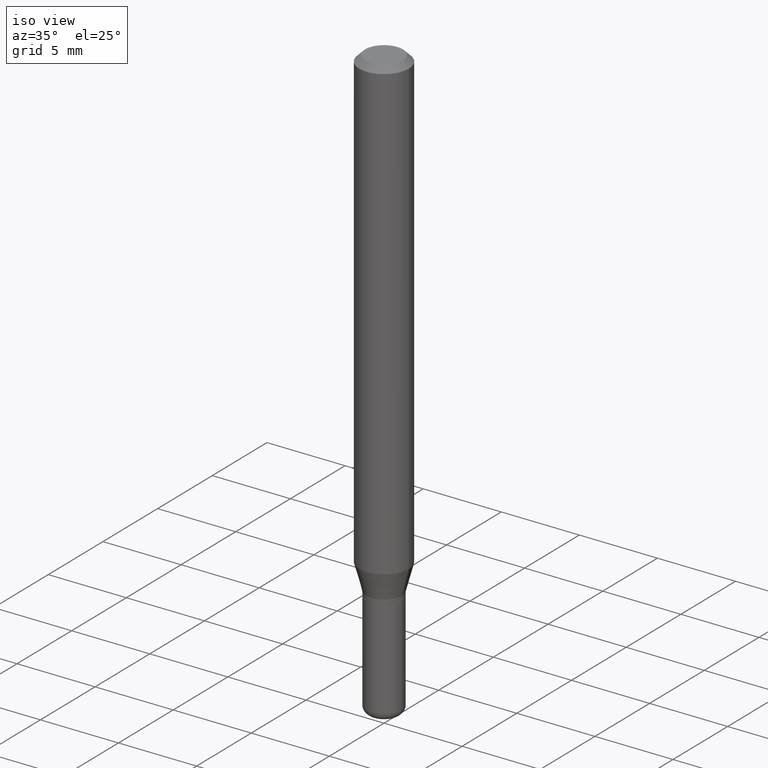
[diagram: clean part render]
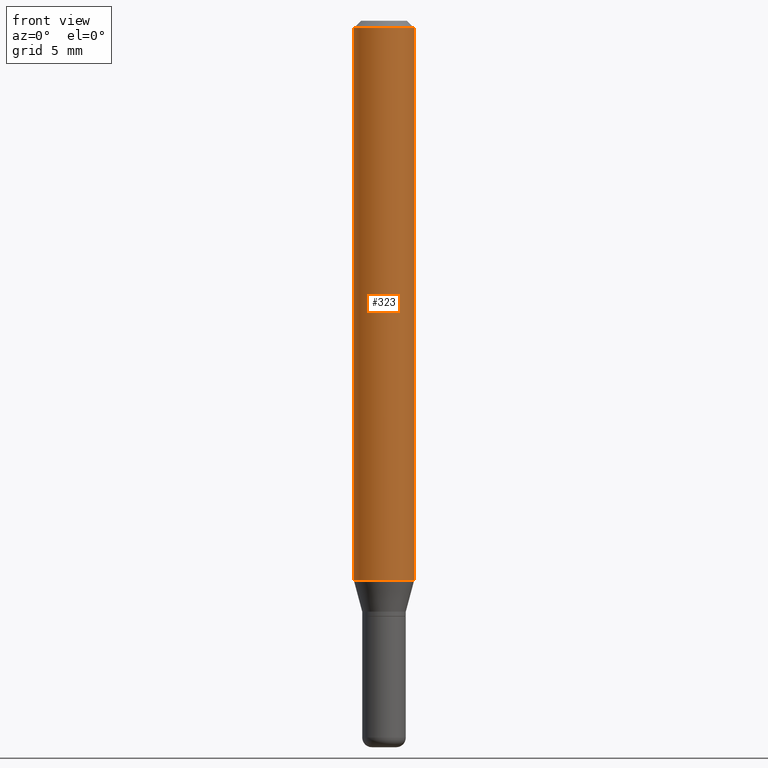
[diagram: tour spotlight — one face highlighted and labeled with its STEP entity id]
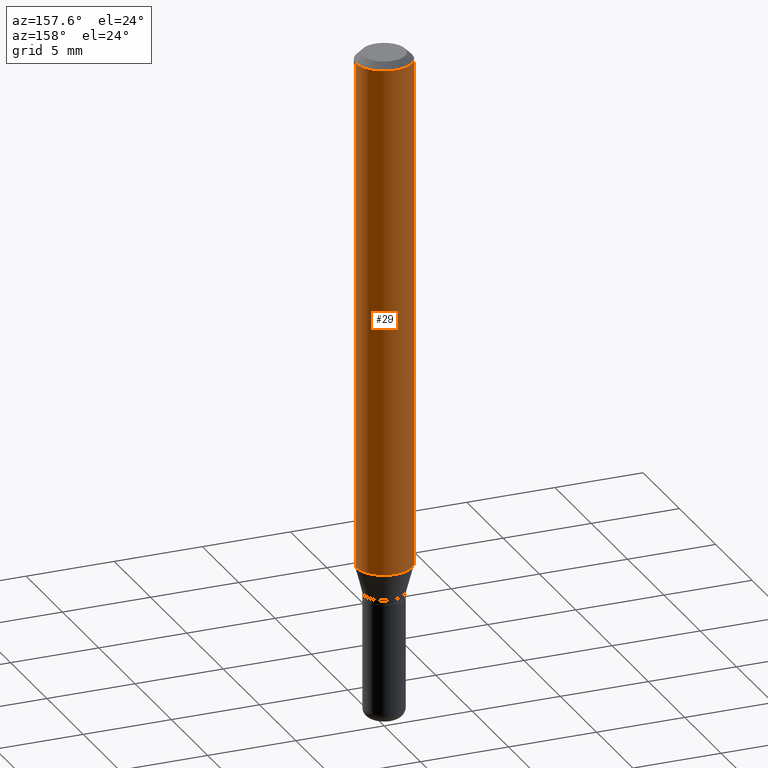
[diagram: tour spotlight — one face highlighted and labeled with its STEP entity id]
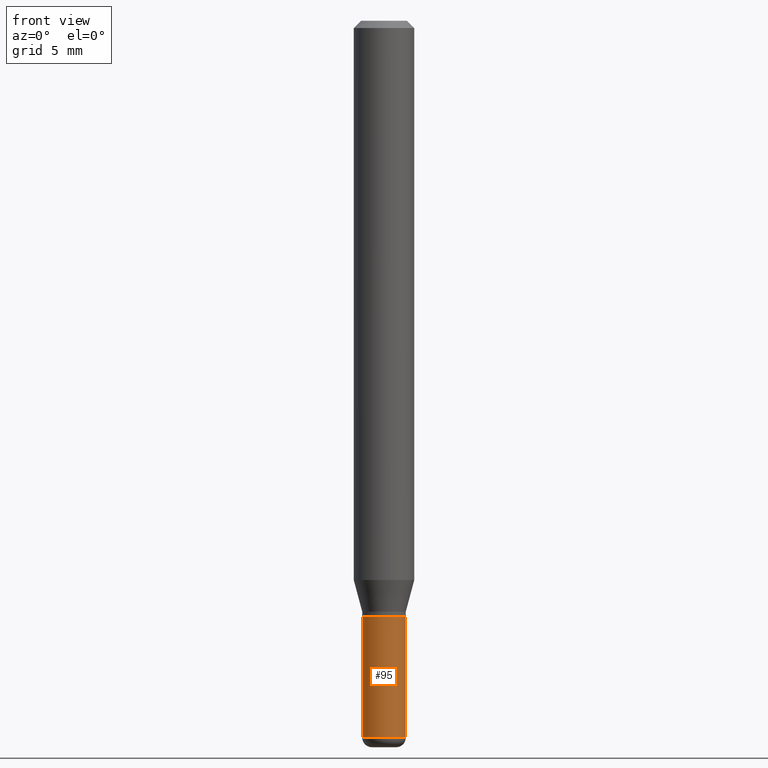
[diagram: tour spotlight — one face highlighted and labeled with its STEP entity id]
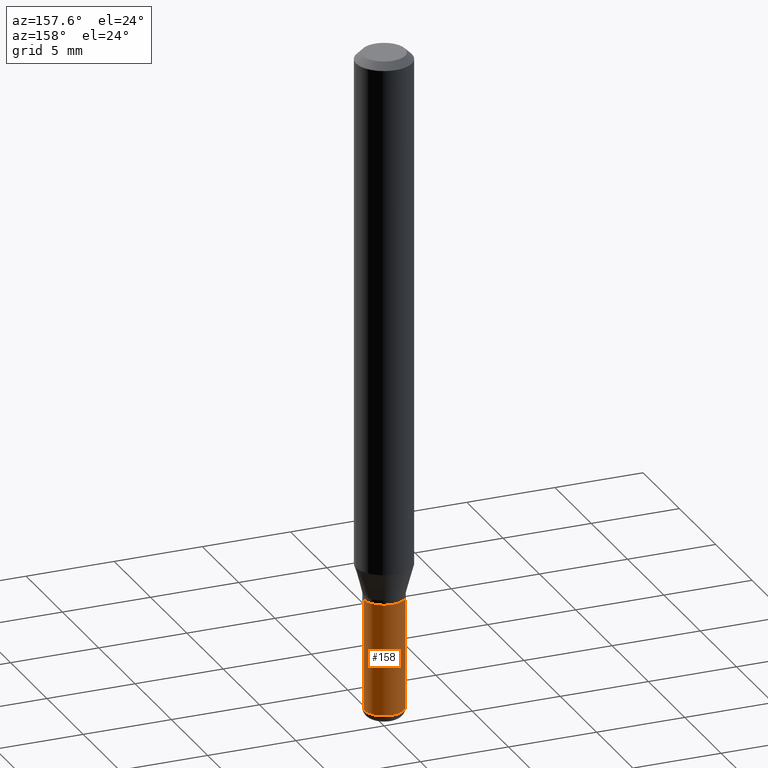
[diagram: tour spotlight — one face highlighted and labeled with its STEP entity id]
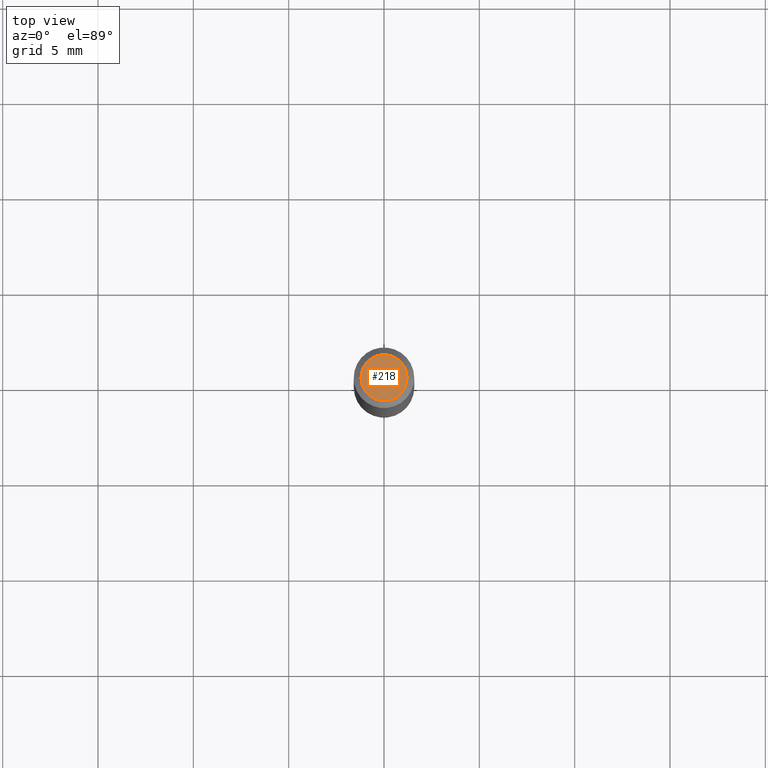
[diagram: tour spotlight — one face highlighted and labeled with its STEP entity id]
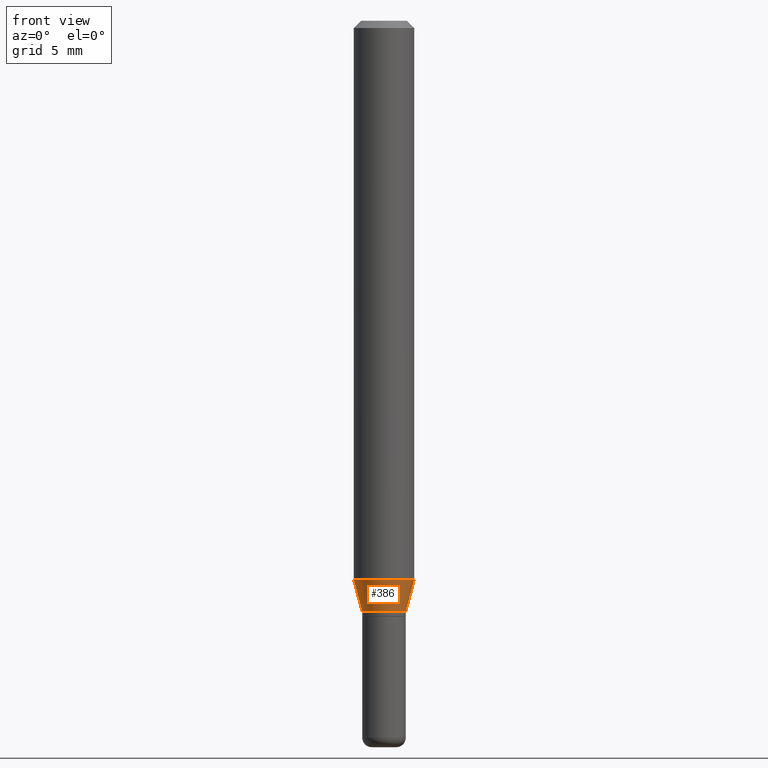
[diagram: tour spotlight — one face highlighted and labeled with its STEP entity id]
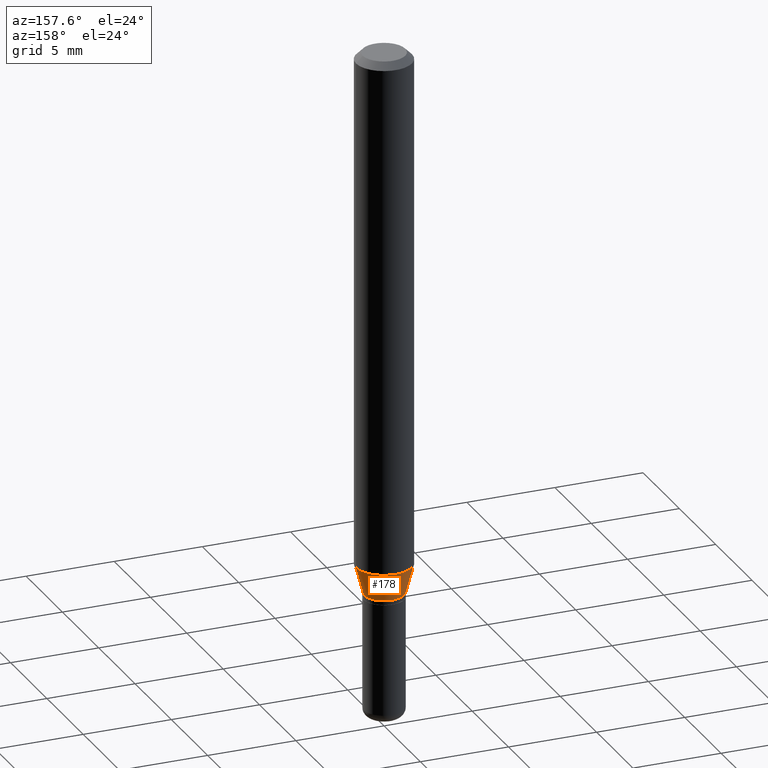
[diagram: tour spotlight — one face highlighted and labeled with its STEP entity id]
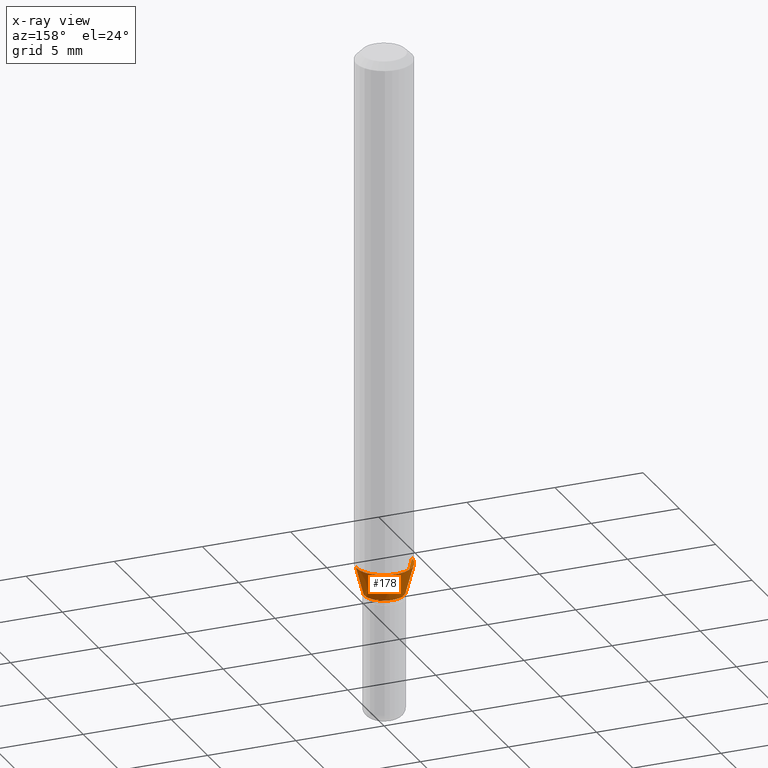
[diagram: x-ray of the same camera — body ghosted, this tour face saturated]
A machine part: a face-by-face anatomy tour. The part has 18 B-rep faces; the first image is the clean iso view, then the 7 largest visible faces are spotlighted one at a time (largest first), each with its STEP entity span.

Face 1 — front view, entity #323. In plain terms, the highlighted cylindrical surface (edge-blend (fillet) strip) has radius 1.5875 mm, axis along (-0, 0, 1).
Definition (entity closure, byte-faithful):
#13 = CARTESIAN_POINT ( 'NONE',  ( 2.823756201468231071E-29, -4.031575482759416467E-15, -1.154689110867544777 ) ) ;
#18 = LINE ( 'NONE', #21, #221 ) ;
#21 = CARTESIAN_POINT ( 'NONE',  ( -0.06250000000000000000, 4.440892098500626162E-16, -3.074334431409316114E-30 ) ) ;
#32 = EDGE_CURVE ( 'NONE', #60, #497, #388, .T. ) ;
#47 = DIRECTION ( 'NONE',  ( 1.000000000000000000, -6.982962677686262766E-15, 0.000000000000000000 ) ) ;
#48 = CIRCLE ( 'NONE', #139, 0.06250000000000000000 ) ;
#54 = DIRECTION ( 'NONE',  ( -2.445468806185136597E-29, 3.491481338843145583E-15, 1.000000000000000000 ) ) ;
#60 = VERTEX_POINT ( 'NONE', #226 ) ;
#85 = ORIENTED_EDGE ( 'NONE', *, *, #32, .T. ) ;
#97 = DIRECTION ( 'NONE',  ( 1.000000000000000000, -6.982962677686266711E-15, 0.000000000000000000 ) ) ;
#100 = DIRECTION ( 'NONE',  ( -2.445468806185136877E-29, 3.491481338843145188E-15, 1.000000000000000000 ) ) ;
#124 = VERTEX_POINT ( 'NONE', #361 ) ;
#136 = CARTESIAN_POINT ( 'NONE',  ( 0.06250000000000000000, -4.888073874380378612E-16, -0.01499999999999970281 ) ) ;
#139 = AXIS2_PLACEMENT_3D ( 'NONE', #328, #289, #97 ) ;
#144 = CIRCLE ( 'NONE', #377, 0.06250000000000000000 ) ;
#159 = ORIENTED_EDGE ( 'NONE', *, *, #248, .T. ) ;
#221 = VECTOR ( 'NONE', #100, 39.37007874015748143 ) ;
#226 = CARTESIAN_POINT ( 'NONE',  ( 0.06250000000000000000, -4.468010650114807348E-15, -1.154689110867544777 ) ) ;
#233 = ORIENTED_EDGE ( 'NONE', *, *, #268, .F. ) ;
#248 = EDGE_CURVE ( 'NONE', #501, #60, #144, .T. ) ;
#251 = AXIS2_PLACEMENT_3D ( 'NONE', #484, #54, #362 ) ;
#268 = EDGE_CURVE ( 'NONE', #124, #497, #48, .T. ) ;
#289 = DIRECTION ( 'NONE',  ( -2.445468806185136597E-29, 3.491481338843145583E-15, 1.000000000000000000 ) ) ;
#294 = CARTESIAN_POINT ( 'NONE',  ( -0.06250000000000000000, -3.587486272909353851E-15, -1.154689110867544777 ) ) ;
#306 = CARTESIAN_POINT ( 'NONE',  ( 0.06250000000000000000, -4.364351673553916694E-16, 3.047610484872459871E-30 ) ) ;
#323 = ADVANCED_FACE ( 'NONE', ( #400 ), #486, .T. ) ;
#328 = CARTESIAN_POINT ( 'NONE',  ( 3.668203209277632395E-31, -5.237222008264614861E-17, -0.01499999999999970281 ) ) ;
#361 = CARTESIAN_POINT ( 'NONE',  ( -0.06250000000000000000, -1.597884641570968368E-15, -0.01499999999999970281 ) ) ;
#362 = DIRECTION ( 'NONE',  ( 1.000000000000000000, -6.982962677686266711E-15, 4.876176775795935793E-29 ) ) ;
#377 = AXIS2_PLACEMENT_3D ( 'NONE', #13, #441, #47 ) ;
#388 = LINE ( 'NONE', #306, #418 ) ;
#391 = DIRECTION ( 'NONE',  ( -2.445468806185136877E-29, 3.491481338843145188E-15, 1.000000000000000000 ) ) ;
#400 = FACE_OUTER_BOUND ( 'NONE', #514, .T. ) ;
#418 = VECTOR ( 'NONE', #391, 39.37007874015748143 ) ;
#441 = DIRECTION ( 'NONE',  ( -2.445468806185136597E-29, 3.491481338843145583E-15, 1.000000000000000000 ) ) ;
#451 = ORIENTED_EDGE ( 'NONE', *, *, #506, .F. ) ;
#484 = CARTESIAN_POINT ( 'NONE',  ( 0.000000000000000000, 0.000000000000000000, 0.000000000000000000 ) ) ;
#486 = CYLINDRICAL_SURFACE ( 'NONE', #251, 0.06250000000000000000 ) ;
#497 = VERTEX_POINT ( 'NONE', #136 ) ;
#501 = VERTEX_POINT ( 'NONE', #294 ) ;
#506 = EDGE_CURVE ( 'NONE', #501, #124, #18, .T. ) ;
#514 = EDGE_LOOP ( 'NONE', ( #451, #159, #85, #233 ) ) ;

Face 2 — auxiliary view, entity #29. In plain terms, the highlighted cylindrical surface (edge-blend (fillet) strip) has radius 1.5875 mm, axis along (-0, 0, 1).
Definition (entity closure, byte-faithful):
#18 = LINE ( 'NONE', #21, #221 ) ;
#21 = CARTESIAN_POINT ( 'NONE',  ( -0.06250000000000000000, 4.440892098500626162E-16, -3.074334431409316114E-30 ) ) ;
#29 = ADVANCED_FACE ( 'NONE', ( #125 ), #304, .T. ) ;
#32 = EDGE_CURVE ( 'NONE', #60, #497, #388, .T. ) ;
#52 = CARTESIAN_POINT ( 'NONE',  ( 3.668203209277632395E-31, -5.237222008264614861E-17, -0.01499999999999970281 ) ) ;
#60 = VERTEX_POINT ( 'NONE', #226 ) ;
#100 = DIRECTION ( 'NONE',  ( -2.445468806185136877E-29, 3.491481338843145188E-15, 1.000000000000000000 ) ) ;
#124 = VERTEX_POINT ( 'NONE', #361 ) ;
#125 = FACE_OUTER_BOUND ( 'NONE', #489, .T. ) ;
#136 = CARTESIAN_POINT ( 'NONE',  ( 0.06250000000000000000, -4.888073874380378612E-16, -0.01499999999999970281 ) ) ;
#161 = ORIENTED_EDGE ( 'NONE', *, *, #510, .T. ) ;
#195 = ORIENTED_EDGE ( 'NONE', *, *, #371, .F. ) ;
#208 = DIRECTION ( 'NONE',  ( -2.445468806185136597E-29, 3.491481338843145583E-15, 1.000000000000000000 ) ) ;
#221 = VECTOR ( 'NONE', #100, 39.37007874015748143 ) ;
#226 = CARTESIAN_POINT ( 'NONE',  ( 0.06250000000000000000, -4.468010650114807348E-15, -1.154689110867544777 ) ) ;
#228 = AXIS2_PLACEMENT_3D ( 'NONE', #52, #208, #366 ) ;
#254 = DIRECTION ( 'NONE',  ( -2.445468806185136597E-29, 3.491481338843145583E-15, 1.000000000000000000 ) ) ;
#262 = DIRECTION ( 'NONE',  ( -2.445468806185136597E-29, 3.491481338843145583E-15, 1.000000000000000000 ) ) ;
#278 = CIRCLE ( 'NONE', #228, 0.06250000000000000000 ) ;
#286 = AXIS2_PLACEMENT_3D ( 'NONE', #452, #254, #499 ) ;
#294 = CARTESIAN_POINT ( 'NONE',  ( -0.06250000000000000000, -3.587486272909353851E-15, -1.154689110867544777 ) ) ;
#304 = CYLINDRICAL_SURFACE ( 'NONE', #487, 0.06250000000000000000 ) ;
#306 = CARTESIAN_POINT ( 'NONE',  ( 0.06250000000000000000, -4.364351673553916694E-16, 3.047610484872459871E-30 ) ) ;
#361 = CARTESIAN_POINT ( 'NONE',  ( -0.06250000000000000000, -1.597884641570968368E-15, -0.01499999999999970281 ) ) ;
#366 = DIRECTION ( 'NONE',  ( 1.000000000000000000, -6.982962677686266711E-15, 0.000000000000000000 ) ) ;
#371 = EDGE_CURVE ( 'NONE', #497, #124, #278, .T. ) ;
#388 = LINE ( 'NONE', #306, #418 ) ;
#391 = DIRECTION ( 'NONE',  ( -2.445468806185136877E-29, 3.491481338843145188E-15, 1.000000000000000000 ) ) ;
#418 = VECTOR ( 'NONE', #391, 39.37007874015748143 ) ;
#419 = DIRECTION ( 'NONE',  ( 1.000000000000000000, -6.982962677686266711E-15, 4.876176775795935793E-29 ) ) ;
#426 = CIRCLE ( 'NONE', #286, 0.06250000000000000000 ) ;
#427 = ORIENTED_EDGE ( 'NONE', *, *, #32, .F. ) ;
#432 = ORIENTED_EDGE ( 'NONE', *, *, #506, .T. ) ;
#452 = CARTESIAN_POINT ( 'NONE',  ( 2.823756201468231071E-29, -4.031575482759416467E-15, -1.154689110867544777 ) ) ;
#461 = CARTESIAN_POINT ( 'NONE',  ( 0.000000000000000000, 0.000000000000000000, 0.000000000000000000 ) ) ;
#487 = AXIS2_PLACEMENT_3D ( 'NONE', #461, #262, #419 ) ;
#489 = EDGE_LOOP ( 'NONE', ( #161, #432, #195, #427 ) ) ;
#497 = VERTEX_POINT ( 'NONE', #136 ) ;
#499 = DIRECTION ( 'NONE',  ( 1.000000000000000000, -6.982962677686262766E-15, 0.000000000000000000 ) ) ;
#501 = VERTEX_POINT ( 'NONE', #294 ) ;
#506 = EDGE_CURVE ( 'NONE', #501, #124, #18, .T. ) ;
#510 = EDGE_CURVE ( 'NONE', #60, #501, #426, .T. ) ;

Face 3 — front view, entity #95. In plain terms, the highlighted cylindrical surface (edge-blend (fillet) strip) has radius 1.143 mm, axis along (-0, 0, 1).
Definition (entity closure, byte-faithful):
#2 = DIRECTION ( 'NONE',  ( 1.000000000000000000, -6.982962677686263555E-15, 0.000000000000000000 ) ) ;
#19 = VECTOR ( 'NONE', #89, 39.37007874015748143 ) ;
#28 = LINE ( 'NONE', #469, #150 ) ;
#53 = CARTESIAN_POINT ( 'NONE',  ( 0.04500000000000003303, -5.481625701983737354E-15, -1.479999999999999982 ) ) ;
#64 = EDGE_CURVE ( 'NONE', #79, #192, #28, .T. ) ;
#66 = ORIENTED_EDGE ( 'NONE', *, *, #64, .F. ) ;
#73 = CARTESIAN_POINT ( 'NONE',  ( 3.007926631607718216E-29, -4.294522046777069173E-15, -1.230000000000000204 ) ) ;
#79 = VERTEX_POINT ( 'NONE', #314 ) ;
#89 = DIRECTION ( 'NONE',  ( -2.445468806185136877E-29, 3.491481338843145188E-15, 1.000000000000000000 ) ) ;
#91 = ORIENTED_EDGE ( 'NONE', *, *, #101, .T. ) ;
#95 = ADVANCED_FACE ( 'NONE', ( #187 ), #350, .T. ) ;
#101 = EDGE_CURVE ( 'NONE', #79, #243, #300, .T. ) ;
#127 = LINE ( 'NONE', #444, #19 ) ;
#137 = AXIS2_PLACEMENT_3D ( 'NONE', #478, #198, #234 ) ;
#150 = VECTOR ( 'NONE', #394, 39.37007874015748143 ) ;
#154 = DIRECTION ( 'NONE',  ( -2.445468806185136597E-29, 3.491481338843145583E-15, 1.000000000000000000 ) ) ;
#157 = DIRECTION ( 'NONE',  ( -2.445468806185136597E-29, 3.491481338843145583E-15, 1.000000000000000000 ) ) ;
#187 = FACE_OUTER_BOUND ( 'NONE', #379, .T. ) ;
#192 = VERTEX_POINT ( 'NONE', #518 ) ;
#197 = EDGE_CURVE ( 'NONE', #192, #303, #334, .T. ) ;
#198 = DIRECTION ( 'NONE',  ( -2.445468806185136597E-29, 3.491481338843145583E-15, 1.000000000000000000 ) ) ;
#209 = DIRECTION ( 'NONE',  ( 1.000000000000000000, -6.982962677686269077E-15, 0.000000000000000000 ) ) ;
#234 = DIRECTION ( 'NONE',  ( 1.000000000000000000, -6.982962677686267499E-15, 4.876176775795935793E-29 ) ) ;
#243 = VERTEX_POINT ( 'NONE', #53 ) ;
#245 = CARTESIAN_POINT ( 'NONE',  ( 0.04499999999999999833, -4.608755367272951648E-15, -1.230000000000000204 ) ) ;
#279 = EDGE_CURVE ( 'NONE', #243, #303, #127, .T. ) ;
#300 = CIRCLE ( 'NONE', #513, 0.04500000000000003303 ) ;
#303 = VERTEX_POINT ( 'NONE', #245 ) ;
#313 = ORIENTED_EDGE ( 'NONE', *, *, #279, .T. ) ;
#314 = CARTESIAN_POINT ( 'NONE',  ( -0.04500000000000003303, -4.411212983040417053E-15, -1.479999999999999982 ) ) ;
#334 = CIRCLE ( 'NONE', #482, 0.04499999999999999833 ) ;
#350 = CYLINDRICAL_SURFACE ( 'NONE', #137, 0.04500000000000001221 ) ;
#360 = ORIENTED_EDGE ( 'NONE', *, *, #197, .F. ) ;
#379 = EDGE_LOOP ( 'NONE', ( #66, #91, #313, #360 ) ) ;
#394 = DIRECTION ( 'NONE',  ( -2.445468806185136877E-29, 3.491481338843145188E-15, 1.000000000000000000 ) ) ;
#444 = CARTESIAN_POINT ( 'NONE',  ( 0.04500000000000001221, -3.142333204958821302E-16, 2.194279549108171667E-30 ) ) ;
#463 = CARTESIAN_POINT ( 'NONE',  ( 3.619293833154002365E-29, -5.167392381487854879E-15, -1.479999999999999982 ) ) ;
#469 = CARTESIAN_POINT ( 'NONE',  ( -0.04500000000000001221, 3.197442310920451704E-16, -2.213520790614708260E-30 ) ) ;
#478 = CARTESIAN_POINT ( 'NONE',  ( 0.000000000000000000, 0.000000000000000000, 0.000000000000000000 ) ) ;
#482 = AXIS2_PLACEMENT_3D ( 'NONE', #73, #154, #209 ) ;
#513 = AXIS2_PLACEMENT_3D ( 'NONE', #463, #157, #2 ) ;
#518 = CARTESIAN_POINT ( 'NONE',  ( -0.04499999999999999833, -4.411212983040417053E-15, -1.230000000000000204 ) ) ;

Face 4 — auxiliary view, entity #158. In plain terms, the highlighted cylindrical surface (edge-blend (fillet) strip) has radius 1.143 mm, axis along (-0, 0, 1).
Definition (entity closure, byte-faithful):
#19 = VECTOR ( 'NONE', #89, 39.37007874015748143 ) ;
#28 = LINE ( 'NONE', #469, #150 ) ;
#31 = DIRECTION ( 'NONE',  ( 1.000000000000000000, -6.982962677686267499E-15, 4.876176775795935793E-29 ) ) ;
#40 = DIRECTION ( 'NONE',  ( -2.445468806185136597E-29, 3.491481338843145583E-15, 1.000000000000000000 ) ) ;
#45 = ORIENTED_EDGE ( 'NONE', *, *, #279, .F. ) ;
#46 = CIRCLE ( 'NONE', #220, 0.04499999999999999833 ) ;
#53 = CARTESIAN_POINT ( 'NONE',  ( 0.04500000000000003303, -5.481625701983737354E-15, -1.479999999999999982 ) ) ;
#64 = EDGE_CURVE ( 'NONE', #79, #192, #28, .T. ) ;
#69 = AXIS2_PLACEMENT_3D ( 'NONE', #422, #447, #411 ) ;
#79 = VERTEX_POINT ( 'NONE', #314 ) ;
#81 = EDGE_CURVE ( 'NONE', #303, #192, #46, .T. ) ;
#82 = DIRECTION ( 'NONE',  ( -2.445468806185136597E-29, 3.491481338843145583E-15, 1.000000000000000000 ) ) ;
#89 = DIRECTION ( 'NONE',  ( -2.445468806185136877E-29, 3.491481338843145188E-15, 1.000000000000000000 ) ) ;
#114 = CYLINDRICAL_SURFACE ( 'NONE', #321, 0.04500000000000001221 ) ;
#127 = LINE ( 'NONE', #444, #19 ) ;
#150 = VECTOR ( 'NONE', #394, 39.37007874015748143 ) ;
#158 = ADVANCED_FACE ( 'NONE', ( #467 ), #114, .T. ) ;
#192 = VERTEX_POINT ( 'NONE', #518 ) ;
#220 = AXIS2_PLACEMENT_3D ( 'NONE', #438, #82, #232 ) ;
#232 = DIRECTION ( 'NONE',  ( 1.000000000000000000, -6.982962677686269077E-15, 0.000000000000000000 ) ) ;
#238 = CARTESIAN_POINT ( 'NONE',  ( 0.000000000000000000, 0.000000000000000000, 0.000000000000000000 ) ) ;
#243 = VERTEX_POINT ( 'NONE', #53 ) ;
#245 = CARTESIAN_POINT ( 'NONE',  ( 0.04499999999999999833, -4.608755367272951648E-15, -1.230000000000000204 ) ) ;
#261 = ORIENTED_EDGE ( 'NONE', *, *, #64, .T. ) ;
#279 = EDGE_CURVE ( 'NONE', #243, #303, #127, .T. ) ;
#303 = VERTEX_POINT ( 'NONE', #245 ) ;
#308 = ORIENTED_EDGE ( 'NONE', *, *, #81, .F. ) ;
#314 = CARTESIAN_POINT ( 'NONE',  ( -0.04500000000000003303, -4.411212983040417053E-15, -1.479999999999999982 ) ) ;
#321 = AXIS2_PLACEMENT_3D ( 'NONE', #238, #40, #31 ) ;
#394 = DIRECTION ( 'NONE',  ( -2.445468806185136877E-29, 3.491481338843145188E-15, 1.000000000000000000 ) ) ;
#411 = DIRECTION ( 'NONE',  ( 1.000000000000000000, -6.982962677686263555E-15, 0.000000000000000000 ) ) ;
#417 = ORIENTED_EDGE ( 'NONE', *, *, #464, .T. ) ;
#422 = CARTESIAN_POINT ( 'NONE',  ( 3.619293833154002365E-29, -5.167392381487854879E-15, -1.479999999999999982 ) ) ;
#438 = CARTESIAN_POINT ( 'NONE',  ( 3.007926631607718216E-29, -4.294522046777069173E-15, -1.230000000000000204 ) ) ;
#442 = EDGE_LOOP ( 'NONE', ( #417, #261, #308, #45 ) ) ;
#444 = CARTESIAN_POINT ( 'NONE',  ( 0.04500000000000001221, -3.142333204958821302E-16, 2.194279549108171667E-30 ) ) ;
#447 = DIRECTION ( 'NONE',  ( -2.445468806185136597E-29, 3.491481338843145583E-15, 1.000000000000000000 ) ) ;
#448 = CIRCLE ( 'NONE', #69, 0.04500000000000003303 ) ;
#464 = EDGE_CURVE ( 'NONE', #243, #79, #448, .T. ) ;
#467 = FACE_OUTER_BOUND ( 'NONE', #442, .T. ) ;
#469 = CARTESIAN_POINT ( 'NONE',  ( -0.04500000000000001221, 3.197442310920451704E-16, -2.213520790614708260E-30 ) ) ;
#518 = CARTESIAN_POINT ( 'NONE',  ( -0.04499999999999999833, -4.411212983040417053E-15, -1.230000000000000204 ) ) ;

Face 5 — top view, entity #218. In plain terms, the highlighted planar face has unit normal (0, -0, -1).
Definition (entity closure, byte-faithful):
#9 = EDGE_LOOP ( 'NONE', ( #74, #271 ) ) ;
#14 = CIRCLE ( 'NONE', #77, 0.04750000000000000749 ) ;
#74 = ORIENTED_EDGE ( 'NONE', *, *, #202, .T. ) ;
#75 = VERTEX_POINT ( 'NONE', #397 ) ;
#77 = AXIS2_PLACEMENT_3D ( 'NONE', #96, #446, #87 ) ;
#87 = DIRECTION ( 'NONE',  ( 1.000000000000000000, -6.982962677686266711E-15, 4.852736867747365086E-29 ) ) ;
#96 = CARTESIAN_POINT ( 'NONE',  ( -6.680649051745406845E-45, 9.538196290434862081E-31, 2.731847993664263218E-16 ) ) ;
#105 = AXIS2_PLACEMENT_3D ( 'NONE', #481, #407, #283 ) ;
#135 = DIRECTION ( 'NONE',  ( 1.000000000000000000, -6.982962677686266711E-15, 4.852736867747365086E-29 ) ) ;
#167 = CARTESIAN_POINT ( 'NONE',  ( 0.04750000000000000749, -4.035134999187568762E-16, 2.731847993664288856E-16 ) ) ;
#202 = EDGE_CURVE ( 'NONE', #75, #347, #14, .T. ) ;
#211 = CIRCLE ( 'NONE', #312, 0.04750000000000000749 ) ;
#218 = ADVANCED_FACE ( 'NONE', ( #370 ), #246, .F. ) ;
#246 = PLANE ( 'NONE',  #105 ) ;
#256 = DIRECTION ( 'NONE',  ( -2.445468806185136597E-29, 3.491481338843145583E-15, 1.000000000000000000 ) ) ;
#271 = ORIENTED_EDGE ( 'NONE', *, *, #389, .T. ) ;
#283 = DIRECTION ( 'NONE',  ( -1.000000000000000000, 6.982962677686265922E-15, -4.876176775795935793E-29 ) ) ;
#291 = CARTESIAN_POINT ( 'NONE',  ( -6.680649051745406845E-45, 9.538196290434862081E-31, 2.731847993664263218E-16 ) ) ;
#312 = AXIS2_PLACEMENT_3D ( 'NONE', #291, #256, #135 ) ;
#347 = VERTEX_POINT ( 'NONE', #167 ) ;
#370 = FACE_OUTER_BOUND ( 'NONE', #9, .T. ) ;
#389 = EDGE_CURVE ( 'NONE', #347, #75, #211, .T. ) ;
#397 = CARTESIAN_POINT ( 'NONE',  ( -0.04750000000000000749, 3.578768372314221353E-16, 2.731847993664239060E-16 ) ) ;
#407 = DIRECTION ( 'NONE',  ( 2.438088387897960049E-29, -3.491481338843145188E-15, -1.000000000000000000 ) ) ;
#446 = DIRECTION ( 'NONE',  ( -2.445468806185136597E-29, 3.491481338843145583E-15, 1.000000000000000000 ) ) ;
#481 = CARTESIAN_POINT ( 'NONE',  ( 3.316907271900976589E-16, 0.04750000000000000749, -2.925296391183627249E-17 ) ) ;

Face 6 — front view, entity #386. In plain terms, the highlighted conical surface has half-angle 15 deg.
Definition (entity closure, byte-faithful):
#13 = CARTESIAN_POINT ( 'NONE',  ( 2.823756201468231071E-29, -4.031575482759416467E-15, -1.154689110867544777 ) ) ;
#47 = DIRECTION ( 'NONE',  ( 1.000000000000000000, -6.982962677686262766E-15, 0.000000000000000000 ) ) ;
#57 = CARTESIAN_POINT ( 'NONE',  ( 2.983471943545866670E-29, -4.259607233388637524E-15, -1.220000000000000195 ) ) ;
#59 = DIRECTION ( 'NONE',  ( 0.2588190451025206285, 1.565188264969627095E-15, 0.9659258262890682012 ) ) ;
#60 = VERTEX_POINT ( 'NONE', #226 ) ;
#62 = CONICAL_SURFACE ( 'NONE', #177, 0.04499999999999999833, 0.2617993877991493523 ) ;
#86 = EDGE_CURVE ( 'NONE', #369, #188, #292, .T. ) ;
#98 = FACE_OUTER_BOUND ( 'NONE', #123, .T. ) ;
#111 = DIRECTION ( 'NONE',  ( -2.445468806185136597E-29, 3.491481338843145583E-15, 1.000000000000000000 ) ) ;
#123 = EDGE_LOOP ( 'NONE', ( #358, #204, #325, #206 ) ) ;
#130 = CARTESIAN_POINT ( 'NONE',  ( -0.04499999999999999833, -3.763674637602973398E-15, -1.220000000000000195 ) ) ;
#141 = DIRECTION ( 'NONE',  ( -2.445468806185136597E-29, 3.491481338843145583E-15, 1.000000000000000000 ) ) ;
#144 = CIRCLE ( 'NONE', #377, 0.06250000000000000000 ) ;
#168 = AXIS2_PLACEMENT_3D ( 'NONE', #309, #111, #385 ) ;
#177 = AXIS2_PLACEMENT_3D ( 'NONE', #57, #141, #223 ) ;
#188 = VERTEX_POINT ( 'NONE', #311 ) ;
#204 = ORIENTED_EDGE ( 'NONE', *, *, #86, .T. ) ;
#206 = ORIENTED_EDGE ( 'NONE', *, *, #248, .F. ) ;
#207 = EDGE_CURVE ( 'NONE', #369, #501, #284, .T. ) ;
#223 = DIRECTION ( 'NONE',  ( 1.000000000000000000, -6.982962677686269077E-15, 0.000000000000000000 ) ) ;
#226 = CARTESIAN_POINT ( 'NONE',  ( 0.06250000000000000000, -4.468010650114807348E-15, -1.154689110867544777 ) ) ;
#248 = EDGE_CURVE ( 'NONE', #501, #60, #144, .T. ) ;
#249 = DIRECTION ( 'NONE',  ( -0.2588190451025206285, 5.211531920934544731E-15, 0.9659258262890682012 ) ) ;
#284 = LINE ( 'NONE', #320, #302 ) ;
#292 = CIRCLE ( 'NONE', #168, 0.04499999999999999833 ) ;
#294 = CARTESIAN_POINT ( 'NONE',  ( -0.06250000000000000000, -3.587486272909353851E-15, -1.154689110867544777 ) ) ;
#302 = VECTOR ( 'NONE', #249, 39.37007874015748854 ) ;
#309 = CARTESIAN_POINT ( 'NONE',  ( 2.983471943545866670E-29, -4.259607233388637524E-15, -1.220000000000000195 ) ) ;
#311 = CARTESIAN_POINT ( 'NONE',  ( 0.04499999999999999833, -4.573840553884519999E-15, -1.220000000000000195 ) ) ;
#320 = CARTESIAN_POINT ( 'NONE',  ( -0.04499999999999999833, -3.939863002296592945E-15, -1.220000000000000195 ) ) ;
#325 = ORIENTED_EDGE ( 'NONE', *, *, #474, .T. ) ;
#358 = ORIENTED_EDGE ( 'NONE', *, *, #207, .F. ) ;
#369 = VERTEX_POINT ( 'NONE', #130 ) ;
#377 = AXIS2_PLACEMENT_3D ( 'NONE', #13, #441, #47 ) ;
#385 = DIRECTION ( 'NONE',  ( 1.000000000000000000, -6.982962677686269077E-15, 0.000000000000000000 ) ) ;
#386 = ADVANCED_FACE ( 'NONE', ( #98 ), #62, .T. ) ;
#410 = VECTOR ( 'NONE', #59, 39.37007874015748854 ) ;
#416 = LINE ( 'NONE', #449, #410 ) ;
#441 = DIRECTION ( 'NONE',  ( -2.445468806185136597E-29, 3.491481338843145583E-15, 1.000000000000000000 ) ) ;
#449 = CARTESIAN_POINT ( 'NONE',  ( 0.04499999999999999833, -4.573840553884519999E-15, -1.220000000000000195 ) ) ;
#474 = EDGE_CURVE ( 'NONE', #188, #60, #416, .T. ) ;
#501 = VERTEX_POINT ( 'NONE', #294 ) ;

Face 7 — auxiliary view, entity #178. An x-ray twin of the same camera follows (body ghosted, this face saturated) — the face is partly hidden behind the body. In plain terms, the highlighted conical surface has half-angle 15 deg.
Definition (entity closure, byte-faithful):
#4 = EDGE_LOOP ( 'NONE', ( #180, #140, #331, #493 ) ) ;
#59 = DIRECTION ( 'NONE',  ( 0.2588190451025206285, 1.565188264969627095E-15, 0.9659258262890682012 ) ) ;
#60 = VERTEX_POINT ( 'NONE', #226 ) ;
#129 = CARTESIAN_POINT ( 'NONE',  ( 2.983471943545866670E-29, -4.259607233388637524E-15, -1.220000000000000195 ) ) ;
#130 = CARTESIAN_POINT ( 'NONE',  ( -0.04499999999999999833, -3.763674637602973398E-15, -1.220000000000000195 ) ) ;
#140 = ORIENTED_EDGE ( 'NONE', *, *, #207, .T. ) ;
#149 = DIRECTION ( 'NONE',  ( 1.000000000000000000, -6.982962677686269077E-15, 0.000000000000000000 ) ) ;
#170 = CIRCLE ( 'NONE', #516, 0.04499999999999999833 ) ;
#178 = ADVANCED_FACE ( 'NONE', ( #353 ), #236, .T. ) ;
#180 = ORIENTED_EDGE ( 'NONE', *, *, #341, .T. ) ;
#188 = VERTEX_POINT ( 'NONE', #311 ) ;
#207 = EDGE_CURVE ( 'NONE', #369, #501, #284, .T. ) ;
#226 = CARTESIAN_POINT ( 'NONE',  ( 0.06250000000000000000, -4.468010650114807348E-15, -1.154689110867544777 ) ) ;
#229 = CARTESIAN_POINT ( 'NONE',  ( 2.983471943545866670E-29, -4.259607233388637524E-15, -1.220000000000000195 ) ) ;
#236 = CONICAL_SURFACE ( 'NONE', #244, 0.04499999999999999833, 0.2617993877991493523 ) ;
#242 = DIRECTION ( 'NONE',  ( 1.000000000000000000, -6.982962677686269077E-15, 0.000000000000000000 ) ) ;
#244 = AXIS2_PLACEMENT_3D ( 'NONE', #229, #512, #149 ) ;
#249 = DIRECTION ( 'NONE',  ( -0.2588190451025206285, 5.211531920934544731E-15, 0.9659258262890682012 ) ) ;
#254 = DIRECTION ( 'NONE',  ( -2.445468806185136597E-29, 3.491481338843145583E-15, 1.000000000000000000 ) ) ;
#284 = LINE ( 'NONE', #320, #302 ) ;
#286 = AXIS2_PLACEMENT_3D ( 'NONE', #452, #254, #499 ) ;
#294 = CARTESIAN_POINT ( 'NONE',  ( -0.06250000000000000000, -3.587486272909353851E-15, -1.154689110867544777 ) ) ;
#302 = VECTOR ( 'NONE', #249, 39.37007874015748854 ) ;
#311 = CARTESIAN_POINT ( 'NONE',  ( 0.04499999999999999833, -4.573840553884519999E-15, -1.220000000000000195 ) ) ;
#320 = CARTESIAN_POINT ( 'NONE',  ( -0.04499999999999999833, -3.939863002296592945E-15, -1.220000000000000195 ) ) ;
#331 = ORIENTED_EDGE ( 'NONE', *, *, #510, .F. ) ;
#341 = EDGE_CURVE ( 'NONE', #188, #369, #170, .T. ) ;
#353 = FACE_OUTER_BOUND ( 'NONE', #4, .T. ) ;
#369 = VERTEX_POINT ( 'NONE', #130 ) ;
#406 = DIRECTION ( 'NONE',  ( -2.445468806185136597E-29, 3.491481338843145583E-15, 1.000000000000000000 ) ) ;
#410 = VECTOR ( 'NONE', #59, 39.37007874015748854 ) ;
#416 = LINE ( 'NONE', #449, #410 ) ;
#426 = CIRCLE ( 'NONE', #286, 0.06250000000000000000 ) ;
#449 = CARTESIAN_POINT ( 'NONE',  ( 0.04499999999999999833, -4.573840553884519999E-15, -1.220000000000000195 ) ) ;
#452 = CARTESIAN_POINT ( 'NONE',  ( 2.823756201468231071E-29, -4.031575482759416467E-15, -1.154689110867544777 ) ) ;
#474 = EDGE_CURVE ( 'NONE', #188, #60, #416, .T. ) ;
#493 = ORIENTED_EDGE ( 'NONE', *, *, #474, .F. ) ;
#499 = DIRECTION ( 'NONE',  ( 1.000000000000000000, -6.982962677686262766E-15, 0.000000000000000000 ) ) ;
#501 = VERTEX_POINT ( 'NONE', #294 ) ;
#510 = EDGE_CURVE ( 'NONE', #60, #501, #426, .T. ) ;
#512 = DIRECTION ( 'NONE',  ( -2.445468806185136597E-29, 3.491481338843145583E-15, 1.000000000000000000 ) ) ;
#516 = AXIS2_PLACEMENT_3D ( 'NONE', #129, #406, #242 ) ;